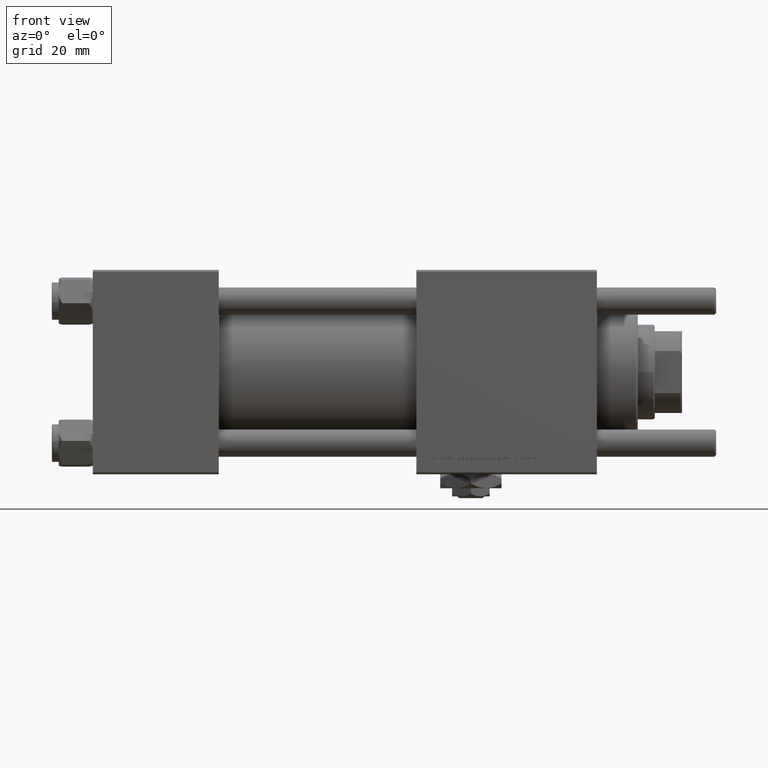
[diagram: clean part render]
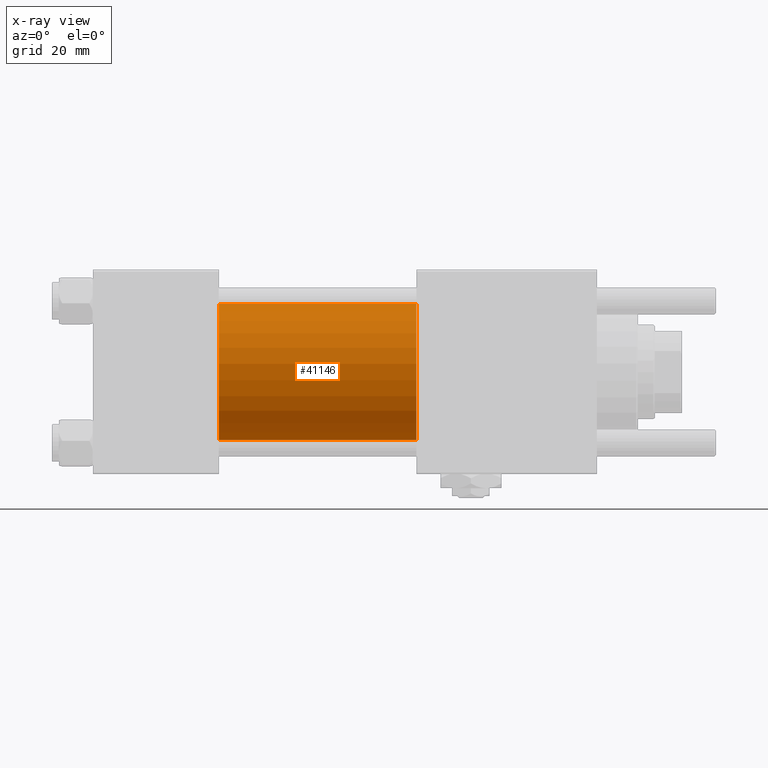
[diagram: x-ray — body ghosted, one internal face saturated and labeled with its STEP entity id]
A machine part, front view, then the same camera in x-ray: the body is ghosted and one INTERNAL B-rep face — a face not visible from any outside direction — is saturated and labeled: STEP entity #41146.
In plain terms, the highlighted cylindrical surface (partial cylindrical patch) has radius 20 mm, axis along (-1, -0, -0).
Its self-contained STEP definition (entity closure, byte-faithful):
#966 = EDGE_CURVE ( 'NONE', #39676, #53828, #13724, .T. ) ;
#1467 = CARTESIAN_POINT ( 'NONE',  ( 95.00000000000000000, -1.527916156705046464E-16, -20.00000000000000000 ) ) ;
#3916 = VERTEX_POINT ( 'NONE', #20482 ) ;
#4457 = DIRECTION ( 'NONE',  ( 0.000000000000000000, 0.000000000000000000, -1.000000000000000000 ) ) ;
#4748 = CARTESIAN_POINT ( 'NONE',  ( 95.00000000000000000, -2.602085213965210642E-15, 0.000000000000000000 ) ) ;
#7140 = CARTESIAN_POINT ( 'NONE',  ( 95.00000000000000000, -2.602085213965210642E-15, 0.000000000000000000 ) ) ;
#8677 = CIRCLE ( 'NONE', #20952, 20.00000000000000000 ) ;
#11941 = CARTESIAN_POINT ( 'NONE',  ( 95.00000000000000000, -2.602085213965210642E-15, 20.00000000000000000 ) ) ;
#12506 = CIRCLE ( 'NONE', #56947, 20.00000000000000000 ) ;
#13094 = EDGE_CURVE ( 'NONE', #39676, #35723, #8677, .T. ) ;
#13724 = LINE ( 'NONE', #41495, #58417 ) ;
#16054 = DIRECTION ( 'NONE',  ( 0.000000000000000000, 0.000000000000000000, 1.000000000000000000 ) ) ;
#19338 = ORIENTED_EDGE ( 'NONE', *, *, #966, .F. ) ;
#19852 = ORIENTED_EDGE ( 'NONE', *, *, #13094, .T. ) ;
#20482 = CARTESIAN_POINT ( 'NONE',  ( 37.00000000000000000, -1.527916156705046464E-16, -20.00000000000000000 ) ) ;
#20952 = AXIS2_PLACEMENT_3D ( 'NONE', #4748, #40562, #4457 ) ;
#23365 = ORIENTED_EDGE ( 'NONE', *, *, #25107, .F. ) ;
#24037 = DIRECTION ( 'NONE',  ( -1.000000000000000000, -0.000000000000000000, -0.000000000000000000 ) ) ;
#25107 = EDGE_CURVE ( 'NONE', #53828, #3916, #12506, .T. ) ;
#31497 = DIRECTION ( 'NONE',  ( 0.000000000000000000, 0.000000000000000000, -1.000000000000000000 ) ) ;
#31600 = EDGE_CURVE ( 'NONE', #35723, #3916, #54124, .T. ) ;
#31601 = CARTESIAN_POINT ( 'NONE',  ( 95.00000000000000000, -1.527916156705046464E-16, -20.00000000000000000 ) ) ;
#33370 = EDGE_LOOP ( 'NONE', ( #19852, #42863, #23365, #19338 ) ) ;
#33503 = FACE_OUTER_BOUND ( 'NONE', #33370, .T. ) ;
#35723 = VERTEX_POINT ( 'NONE', #1467 ) ;
#39676 = VERTEX_POINT ( 'NONE', #11941 ) ;
#40562 = DIRECTION ( 'NONE',  ( 1.000000000000000000, 0.000000000000000000, 0.000000000000000000 ) ) ;
#41146 = ADVANCED_FACE ( 'NONE', ( #33503 ), #51573, .F. ) ;
#41495 = CARTESIAN_POINT ( 'NONE',  ( 95.00000000000000000, -2.602085213965210642E-15, 20.00000000000000000 ) ) ;
#42669 = DIRECTION ( 'NONE',  ( -1.000000000000000000, -0.000000000000000000, -0.000000000000000000 ) ) ;
#42863 = ORIENTED_EDGE ( 'NONE', *, *, #31600, .T. ) ;
#43860 = VECTOR ( 'NONE', #55856, 1000.000000000000000 ) ;
#47792 = AXIS2_PLACEMENT_3D ( 'NONE', #7140, #42669, #16054 ) ;
#48661 = CARTESIAN_POINT ( 'NONE',  ( 37.00000000000000000, -2.602085213965210642E-15, 0.000000000000000000 ) ) ;
#51573 = CYLINDRICAL_SURFACE ( 'NONE', #47792, 20.00000000000000000 ) ;
#52025 = CARTESIAN_POINT ( 'NONE',  ( 37.00000000000000000, -2.602085213965210642E-15, 20.00000000000000000 ) ) ;
#53716 = DIRECTION ( 'NONE',  ( 1.000000000000000000, 0.000000000000000000, 0.000000000000000000 ) ) ;
#53828 = VERTEX_POINT ( 'NONE', #52025 ) ;
#54124 = LINE ( 'NONE', #31601, #43860 ) ;
#55856 = DIRECTION ( 'NONE',  ( -1.000000000000000000, -0.000000000000000000, -0.000000000000000000 ) ) ;
#56947 = AXIS2_PLACEMENT_3D ( 'NONE', #48661, #53716, #31497 ) ;
#58417 = VECTOR ( 'NONE', #24037, 1000.000000000000000 ) ;